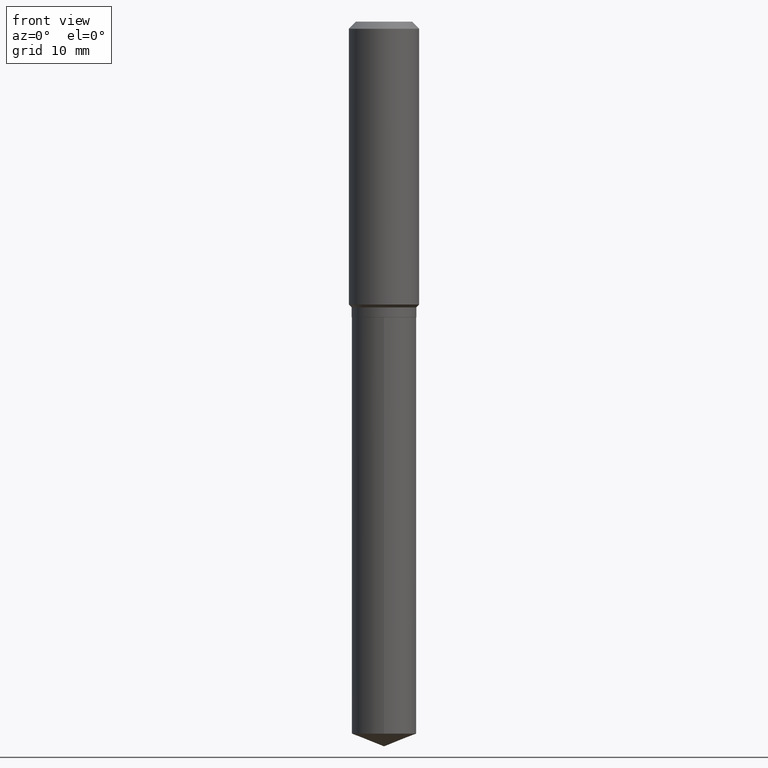
[diagram: clean part render]
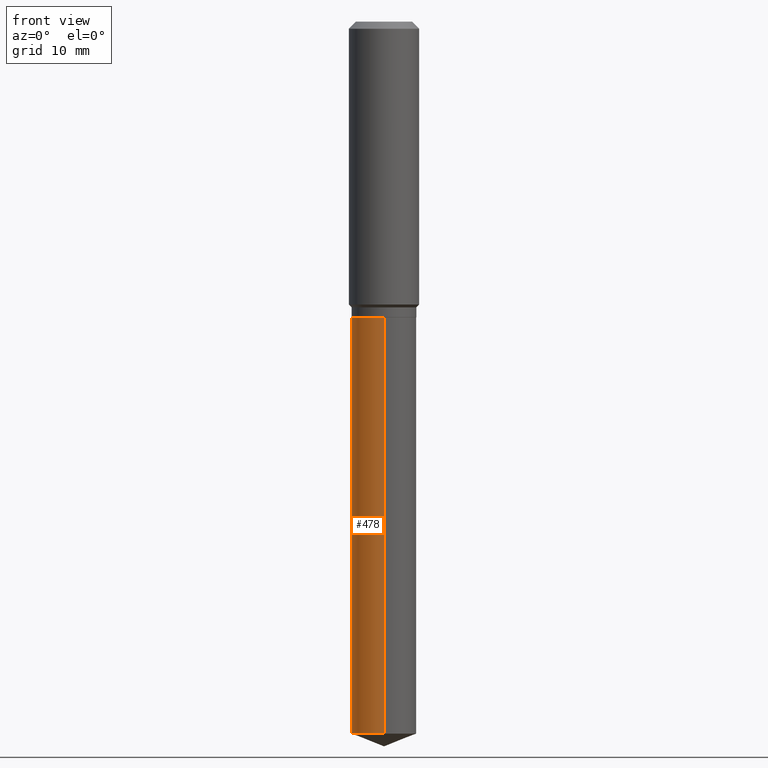
[diagram: same view with one face highlighted and labeled with its STEP entity id]
A machine part, front view. The second image highlights one B-rep face of the part: STEP entity #478.
In plain terms, the highlighted cylindrical surface (edge-blend (fillet) strip) has radius 4.5999 mm, axis along (-0, 0, 1).
Its self-contained STEP definition (entity closure, byte-faithful):
#4 = CIRCLE ( 'NONE', #286, 0.1811000000000000110 ) ;
#8 = DIRECTION ( 'NONE',  ( -2.445490024045987495E-29, 3.491450953658761522E-15, 1.000000000000000000 ) ) ;
#10 = CARTESIAN_POINT ( 'NONE',  ( -1.264614540928942510E-15, -0.1811000000000057841, -1.653399999999999093 ) ) ;
#20 = ORIENTED_EDGE ( 'NONE', *, *, #144, .F. ) ;
#21 = VERTEX_POINT ( 'NONE', #487 ) ;
#55 = VERTEX_POINT ( 'NONE', #10 ) ;
#69 = CARTESIAN_POINT ( 'NONE',  ( 1.286792894461639136E-15, 0.1810999999999861609, -3.983662812866135106 ) ) ;
#73 = ORIENTED_EDGE ( 'NONE', *, *, #428, .F. ) ;
#93 = LINE ( 'NONE', #388, #377 ) ;
#144 = EDGE_CURVE ( 'NONE', #249, #21, #464, .T. ) ;
#173 = ORIENTED_EDGE ( 'NONE', *, *, #409, .T. ) ;
#175 = CIRCLE ( 'NONE', #201, 0.1811000000000000110 ) ;
#191 = DIRECTION ( 'NONE',  ( -2.445490024045987495E-29, 3.491450953658761522E-15, 1.000000000000000000 ) ) ;
#198 = DIRECTION ( 'NONE',  ( -2.445490024045987495E-29, 3.491450953658761522E-15, 1.000000000000000000 ) ) ;
#201 = AXIS2_PLACEMENT_3D ( 'NONE', #261, #191, #481 ) ;
#224 = ORIENTED_EDGE ( 'NONE', *, *, #325, .T. ) ;
#233 = CARTESIAN_POINT ( 'NONE',  ( 1.286792894461581746E-15, 0.1810999999999942378, -1.653400000000000203 ) ) ;
#236 = CYLINDRICAL_SURFACE ( 'NONE', #475, 0.1811000000000000110 ) ;
#238 = CARTESIAN_POINT ( 'NONE',  ( 4.043338124146503856E-29, -5.772815245643255193E-15, -1.653399999999999537 ) ) ;
#249 = VERTEX_POINT ( 'NONE', #69 ) ;
#261 = CARTESIAN_POINT ( 'NONE',  ( 4.043338124146503856E-29, -5.772815245643255193E-15, -1.653399999999999537 ) ) ;
#263 = VERTEX_POINT ( 'NONE', #486 ) ;
#264 = CARTESIAN_POINT ( 'NONE',  ( 9.741972586415979008E-29, -1.390881356590026921E-14, -3.983662812866134662 ) ) ;
#275 = DIRECTION ( 'NONE',  ( -2.445490024045987775E-29, 3.491450953658761522E-15, 1.000000000000000000 ) ) ;
#286 = AXIS2_PLACEMENT_3D ( 'NONE', #264, #198, #417 ) ;
#319 = DIRECTION ( 'NONE',  ( -6.982962677686266711E-15, -1.000000000000000000, 3.016949744521549444E-15 ) ) ;
#325 = EDGE_CURVE ( 'NONE', #263, #55, #93, .T. ) ;
#357 = DIRECTION ( 'NONE',  ( -2.445490024045987775E-29, 3.491450953658761522E-15, 1.000000000000000000 ) ) ;
#377 = VECTOR ( 'NONE', #357, 39.37007874015748143 ) ;
#383 = VECTOR ( 'NONE', #275, 39.37007874015748143 ) ;
#388 = CARTESIAN_POINT ( 'NONE',  ( -1.264614540928942510E-15, -0.1811000000000057841, -1.653399999999999093 ) ) ;
#399 = EDGE_LOOP ( 'NONE', ( #20, #173, #224, #73 ) ) ;
#409 = EDGE_CURVE ( 'NONE', #249, #263, #4, .T. ) ;
#417 = DIRECTION ( 'NONE',  ( -6.982962677686266711E-15, -1.000000000000000000, 3.016949744521549444E-15 ) ) ;
#428 = EDGE_CURVE ( 'NONE', #21, #55, #175, .T. ) ;
#461 = FACE_OUTER_BOUND ( 'NONE', #399, .T. ) ;
#464 = LINE ( 'NONE', #233, #383 ) ;
#475 = AXIS2_PLACEMENT_3D ( 'NONE', #238, #8, #319 ) ;
#478 = ADVANCED_FACE ( 'NONE', ( #461 ), #236, .T. ) ;
#481 = DIRECTION ( 'NONE',  ( -6.982962677686266711E-15, -1.000000000000000000, 3.016949744521549444E-15 ) ) ;
#486 = CARTESIAN_POINT ( 'NONE',  ( -1.264614540928885318E-15, -0.1811000000000139165, -3.983662812866133773 ) ) ;
#487 = CARTESIAN_POINT ( 'NONE',  ( 1.286792894461639333E-15, 0.1810999999999942378, -1.653400000000000203 ) ) ;